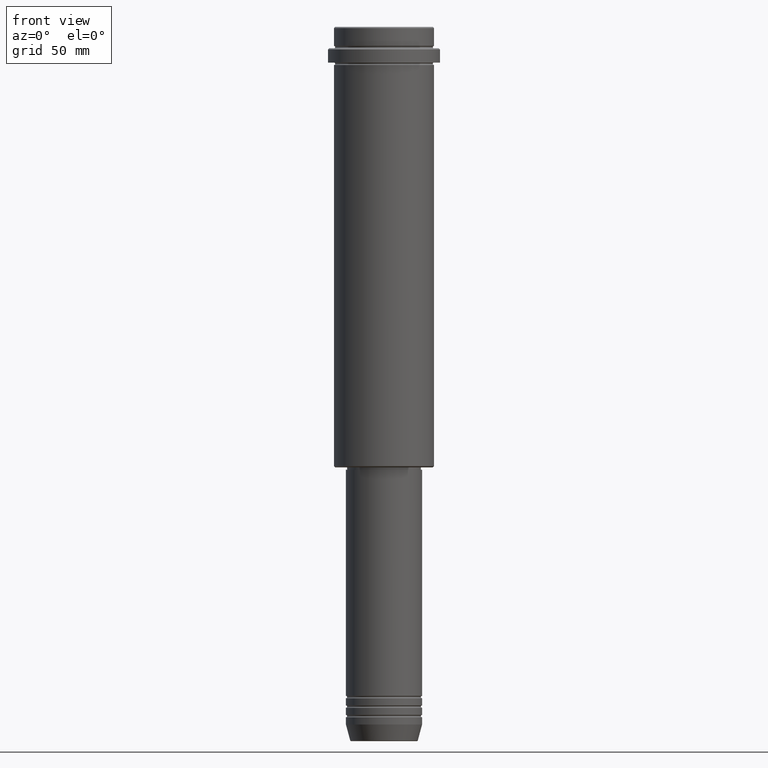
[diagram: clean part render]
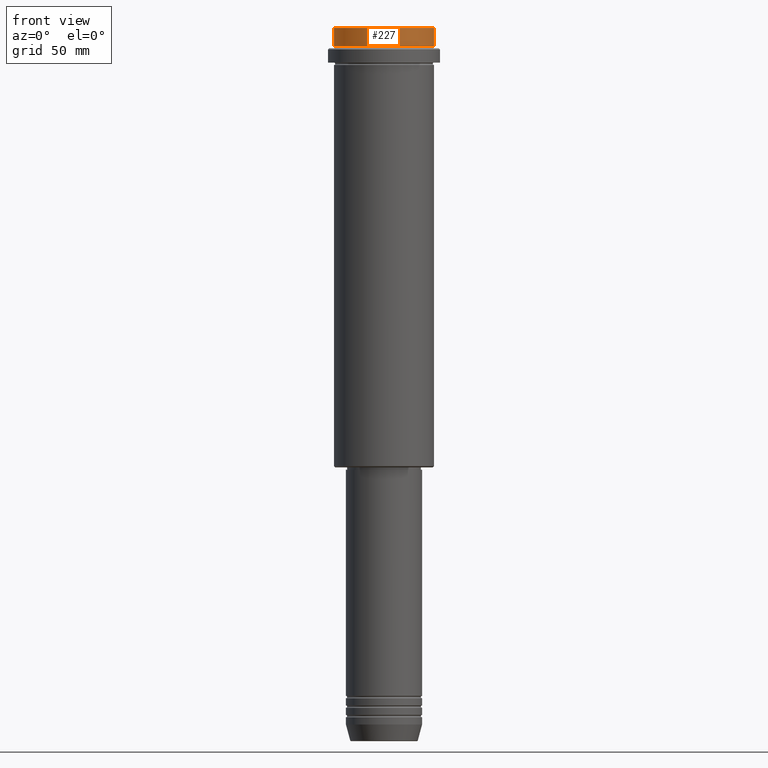
[diagram: same view with one face highlighted and labeled with its STEP entity id]
A machine part, front view. The second image highlights one B-rep face of the part: STEP entity #227.
In plain terms, the highlighted cylindrical surface (partial cylindrical patch) has radius 21 mm, axis along (-0, -0, 1).
Its self-contained STEP definition (entity closure, byte-faithful):
#3 = CIRCLE ( 'NONE', #688, 20.99999999999999645 ) ;
#59 = EDGE_CURVE ( 'NONE', #1016, #390, #3, .T. ) ;
#82 = VECTOR ( 'NONE', #553, 1000.000000000000000 ) ;
#90 = CARTESIAN_POINT ( 'NONE',  ( 0.000000000000000000, 0.000000000000000000, -7.999999999999998224 ) ) ;
#148 = ORIENTED_EDGE ( 'NONE', *, *, #327, .T. ) ;
#227 = ADVANCED_FACE ( 'NONE', ( #656 ), #1283, .T. ) ;
#276 = ORIENTED_EDGE ( 'NONE', *, *, #59, .T. ) ;
#309 = ORIENTED_EDGE ( 'NONE', *, *, #431, .F. ) ;
#311 = CARTESIAN_POINT ( 'NONE',  ( 0.000000000000000000, 0.000000000000000000, 0.000000000000000000 ) ) ;
#318 = DIRECTION ( 'NONE',  ( 1.000000000000000000, 0.000000000000000000, 0.000000000000000000 ) ) ;
#327 = EDGE_CURVE ( 'NONE', #390, #1137, #1083, .T. ) ;
#331 = AXIS2_PLACEMENT_3D ( 'NONE', #311, #1076, #318 ) ;
#346 = ORIENTED_EDGE ( 'NONE', *, *, #1037, .T. ) ;
#390 = VERTEX_POINT ( 'NONE', #1341 ) ;
#431 = EDGE_CURVE ( 'NONE', #1016, #590, #1118, .T. ) ;
#519 = DIRECTION ( 'NONE',  ( 1.000000000000000000, 0.000000000000000000, 0.000000000000000000 ) ) ;
#553 = DIRECTION ( 'NONE',  ( -0.000000000000000000, -0.000000000000000000, 1.000000000000000000 ) ) ;
#557 = VECTOR ( 'NONE', #985, 1000.000000000000000 ) ;
#590 = VERTEX_POINT ( 'NONE', #712 ) ;
#621 = DIRECTION ( 'NONE',  ( 1.000000000000000000, 0.000000000000000000, 0.000000000000000000 ) ) ;
#656 = FACE_OUTER_BOUND ( 'NONE', #1233, .T. ) ;
#688 = AXIS2_PLACEMENT_3D ( 'NONE', #90, #936, #519 ) ;
#711 = CARTESIAN_POINT ( 'NONE',  ( -20.99999999999999645, 2.571758278209441267E-15, -7.999999999999998224 ) ) ;
#712 = CARTESIAN_POINT ( 'NONE',  ( -20.99999999999999645, 2.571758278209441267E-15, -0.4999999999999518718 ) ) ;
#769 = CARTESIAN_POINT ( 'NONE',  ( 20.99999999999999645, 0.000000000000000000, -0.4999999999999518718 ) ) ;
#808 = DIRECTION ( 'NONE',  ( 0.000000000000000000, 0.000000000000000000, -1.000000000000000000 ) ) ;
#823 = CARTESIAN_POINT ( 'NONE',  ( 0.000000000000000000, 0.000000000000000000, -0.4999999999999518718 ) ) ;
#936 = DIRECTION ( 'NONE',  ( -0.000000000000000000, -0.000000000000000000, 1.000000000000000000 ) ) ;
#970 = CARTESIAN_POINT ( 'NONE',  ( 20.99999999999999645, 0.000000000000000000, 0.000000000000000000 ) ) ;
#985 = DIRECTION ( 'NONE',  ( -0.000000000000000000, -0.000000000000000000, 1.000000000000000000 ) ) ;
#1003 = CIRCLE ( 'NONE', #1331, 20.99999999999999645 ) ;
#1016 = VERTEX_POINT ( 'NONE', #711 ) ;
#1037 = EDGE_CURVE ( 'NONE', #1137, #590, #1003, .T. ) ;
#1076 = DIRECTION ( 'NONE',  ( -0.000000000000000000, -0.000000000000000000, 1.000000000000000000 ) ) ;
#1083 = LINE ( 'NONE', #970, #82 ) ;
#1118 = LINE ( 'NONE', #1195, #557 ) ;
#1137 = VERTEX_POINT ( 'NONE', #769 ) ;
#1195 = CARTESIAN_POINT ( 'NONE',  ( -20.99999999999999645, 2.571758278209441267E-15, 0.000000000000000000 ) ) ;
#1233 = EDGE_LOOP ( 'NONE', ( #309, #276, #148, #346 ) ) ;
#1283 = CYLINDRICAL_SURFACE ( 'NONE', #331, 20.99999999999999645 ) ;
#1331 = AXIS2_PLACEMENT_3D ( 'NONE', #823, #808, #621 ) ;
#1341 = CARTESIAN_POINT ( 'NONE',  ( 20.99999999999999645, 0.000000000000000000, -7.999999999999998224 ) ) ;